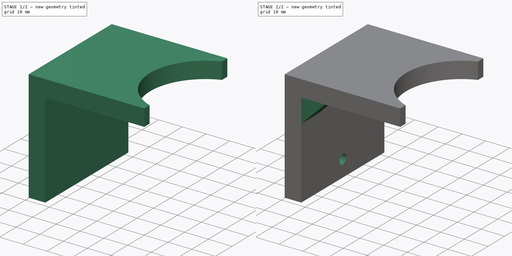
[diagram: build sequence overview — one tinted view per stage of 2, left to right]
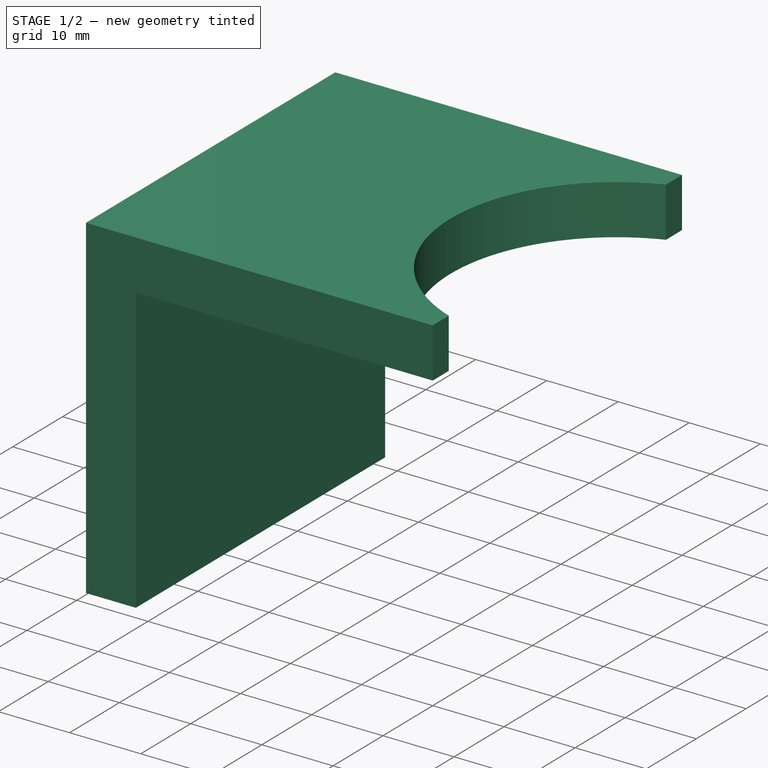
[diagram: stage 1 of 2 — iso view after this stage's code; geometry added in this stage tinted green]
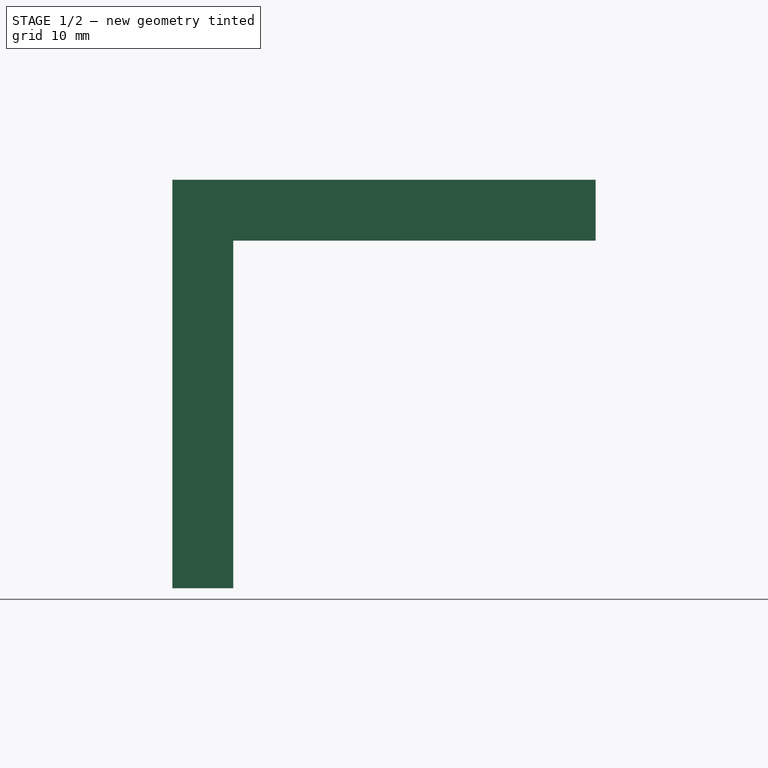
[diagram: stage 1 of 2 — front view after this stage's code; geometry added in this stage tinted green]
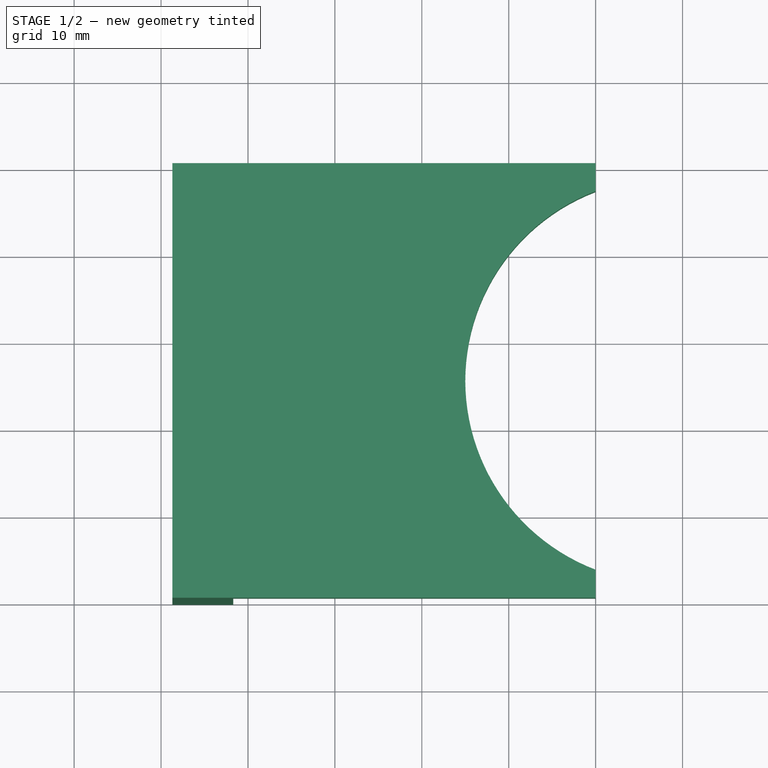
[diagram: stage 1 of 2 — top view after this stage's code; geometry added in this stage tinted green]
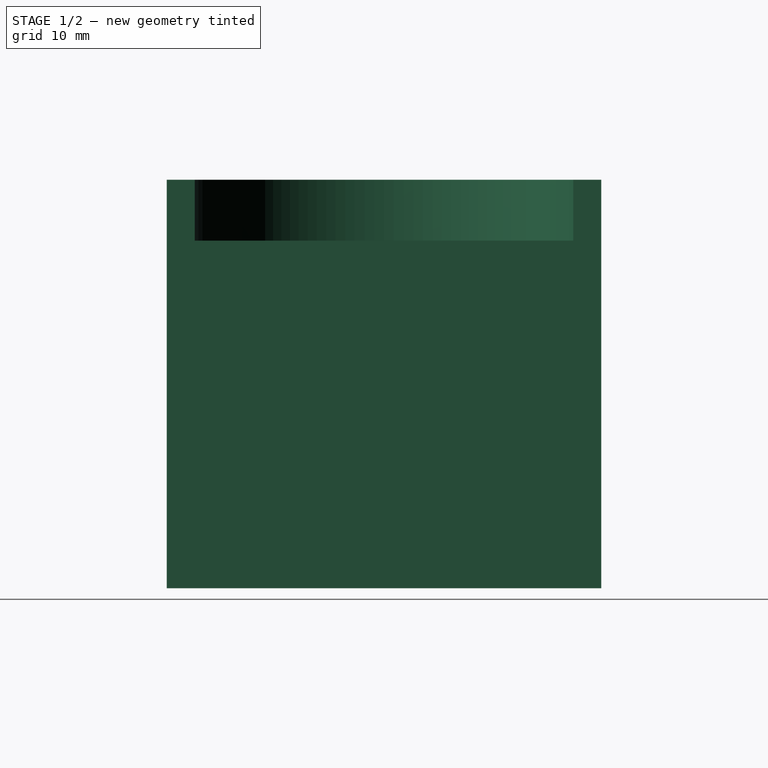
[diagram: stage 1 of 2 — right view after this stage's code; geometry added in this stage tinted green]
FCSTD DOCUMENT  (FreeCAD 0.14R3700 (Git))
Label: equerre_traction_FV-082_rev2
License: CC-BY 3.0
LicenseURL: http://creativecommons.org/licenses/by/3.0/
objects: Sketcher::SketchObject×4, PartDesign::Pad×2, PartDesign::Pocket×2
note: 12 computed .brp shape members not serialized (recipe doc carries the construction recipe); baked Part::Feature solids carry a one-line shape summary decoded from their .brp

FEATURE [Sketcher::SketchObject] Sketch
  Placement = pos=(0,0,0) rot=(1,0,0;1.5708rad)
  sketch-geometry (6):
    g0: LineSegment StartX=-41.7 StartY=-27 StartZ=0 EndX=-48.7 EndY=-27 EndZ=0
    g1: LineSegment StartX=-48.7 StartY=-27 StartZ=0 EndX=-48.7 EndY=20 EndZ=0
    g2: LineSegment StartX=-41.7 StartY=-27 StartZ=0 EndX=-41.7 EndY=13 EndZ=0
    g3: LineSegment StartX=-41.7 StartY=13 StartZ=0 EndX=0 EndY=13 EndZ=0
    g4: LineSegment StartX=0 StartY=13 StartZ=0 EndX=0 EndY=20 EndZ=0
    g5: LineSegment StartX=0 StartY=20 StartZ=0 EndX=-48.7 EndY=20 EndZ=0
  constraints (16):
    c: Horizontal(g0)
    c: Coincident(g1,g0)
    c: Vertical(g1)
    c: Coincident(g2,g0)
    c: Vertical(g2)
    c: Horizontal(g3)
    c: Coincident(g4,g3)
    c: Vertical(g4)
    c: Coincident(g5,g4)
    c: Coincident(g5,g1)
    c: Horizontal(g5)
    c: Distance(g4) = 7
    c: Coincident(g2,g3)
    c: Distance(g0) = 7
    c: Distance(g2) = 40
    c: Distance(g3) = 41.7
FEATURE [PartDesign::Pad] Pad
  Length = 50
  Length2 = 100
  Placement = pos=(0,0,0) rot=(1,0,0;1.5708rad)
  Reversed = true
  Sketch = -> Sketch
  Type = 0
FEATURE [Sketcher::SketchObject] Sketch001
  ExternalGeometry = -> [Pad]
  Placement = pos=(0,0,20) rot=(0,0,1;3.14159rad)
  Support = -> Pad [Face3]
  sketch-geometry (1):
    g0: Circle CenterX=-8.31 CenterY=-25 CenterZ=0 NormalX=0 NormalY=0 NormalZ=1 Radius=23.31
  constraints (3):
    c: Radius(g0) = 23.31
    c: DistanceY(g-1,g0) = -25
    c: DistanceX(g0,g-3) = 50.01
FEATURE [PartDesign::Pocket] Pocket
  Length = 7
  Placement = pos=(0,0,0) rot=(1,0,0;1.5708rad)
  Sketch = -> Sketch001
  Type = 0
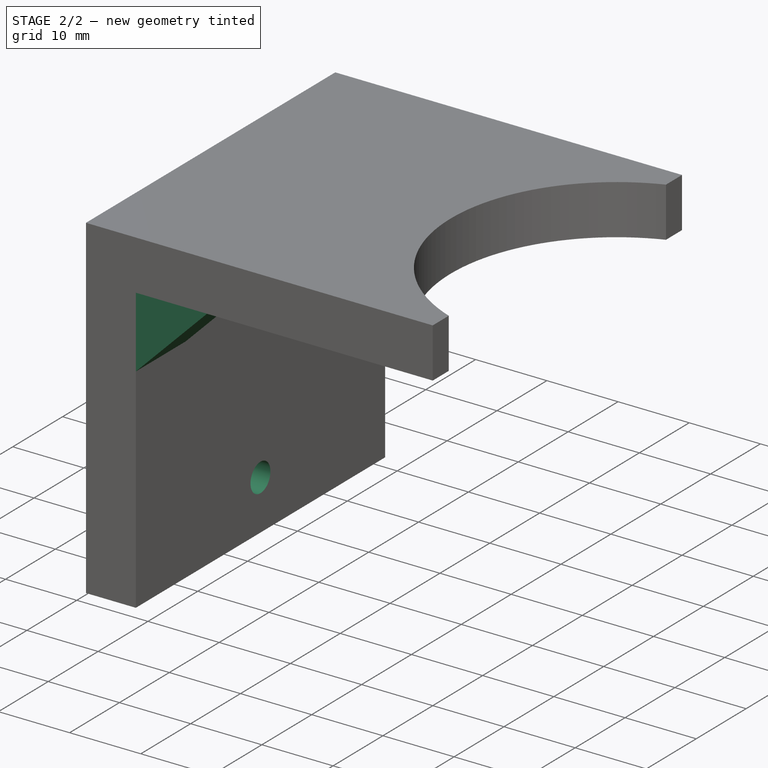
[diagram: stage 2 of 2 — iso view after this stage's code; geometry added in this stage tinted green]
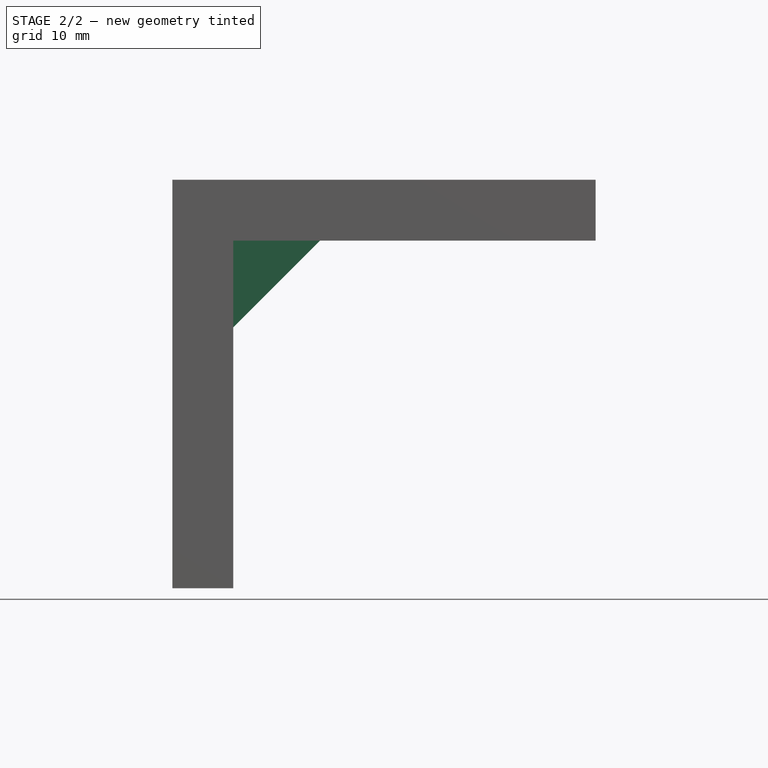
[diagram: stage 2 of 2 — front view after this stage's code; geometry added in this stage tinted green]
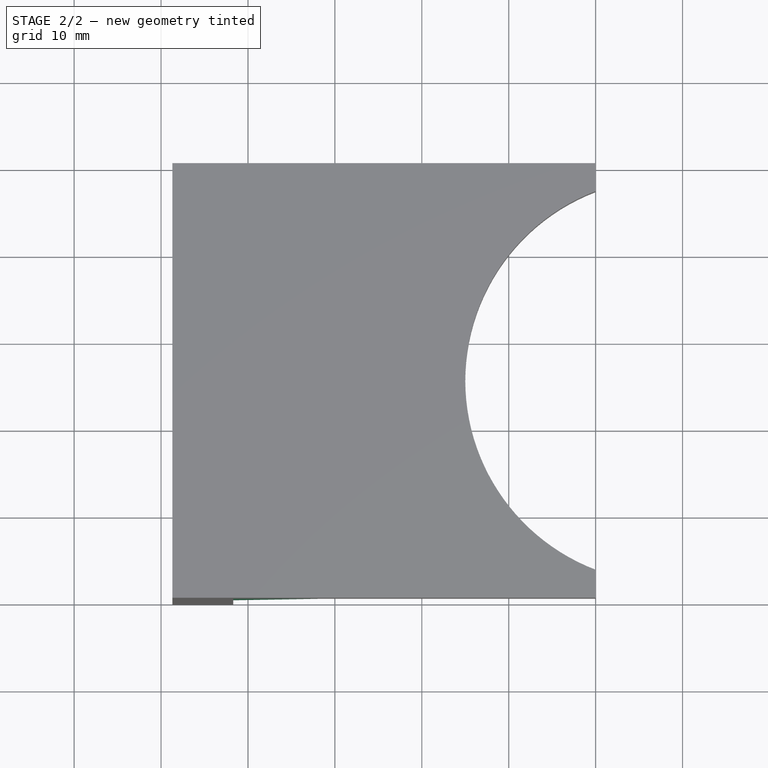
[diagram: stage 2 of 2 — top view after this stage's code; geometry added in this stage tinted green]
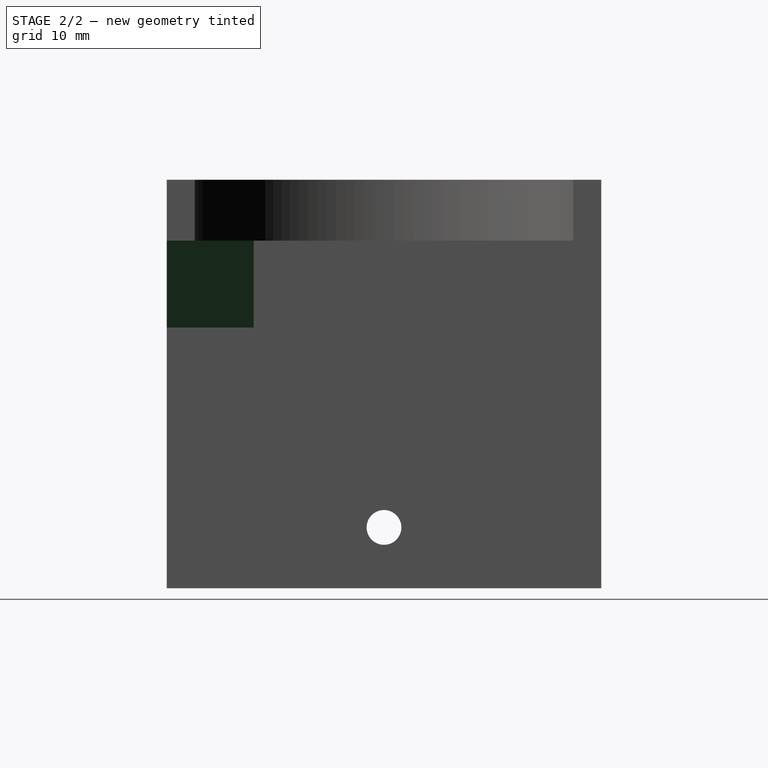
[diagram: stage 2 of 2 — right view after this stage's code; geometry added in this stage tinted green]
FEATURE [Sketcher::SketchObject] Sketch002
  ExternalGeometry = -> [Pocket]
  Placement = pos=(-48.7,0,0) rot=(0.707107,0,-0.707107;3.14159rad)
  Support = -> Pocket [Face3]
  sketch-geometry (1):
    g0: Circle CenterX=20 CenterY=-25 CenterZ=0 NormalX=0 NormalY=0 NormalZ=1 Radius=2
  constraints (3):
    c: Radius(g0) = 2
    c: DistanceX(g0,g-4) = 7
    c: DistanceY(g-4,g0) = 25
FEATURE [PartDesign::Pocket] Pocket001
  Length = 7
  Placement = pos=(0,0,0) rot=(1,0,0;1.5708rad)
  Sketch = -> Sketch002
  Type = 0
FEATURE [Sketcher::SketchObject] Sketch003
  ExternalGeometry = -> [Pocket001]
  Placement = pos=(0,0,0) rot=(1,0,0;1.5708rad)
  Support = -> Pocket001 [Face4]
  sketch-geometry (3):
    g0: LineSegment StartX=-41.7 StartY=13 StartZ=0 EndX=-41.7 EndY=3 EndZ=0
    g1: LineSegment StartX=-41.7 StartY=3 StartZ=0 EndX=-31.7 EndY=13 EndZ=0
    g2: LineSegment StartX=-31.7 StartY=13 StartZ=0 EndX=-41.7 EndY=13 EndZ=0
  constraints (8):
    c: Vertical(g0)
    c: Coincident(g1,g0)
    c: Coincident(g2,g1)
    c: Coincident(g2,g0)
    c: Horizontal(g2)
    c: Distance(g2) = 10
    c: Distance(g0) = 10
    c: Coincident(g0,g-4)
FEATURE [PartDesign::Pad] Pad001
  Length = 10
  Length2 = 100
  Placement = pos=(0,0,0) rot=(1,0,0;1.5708rad)
  Reversed = true
  Sketch = -> Sketch003
  Type = 0
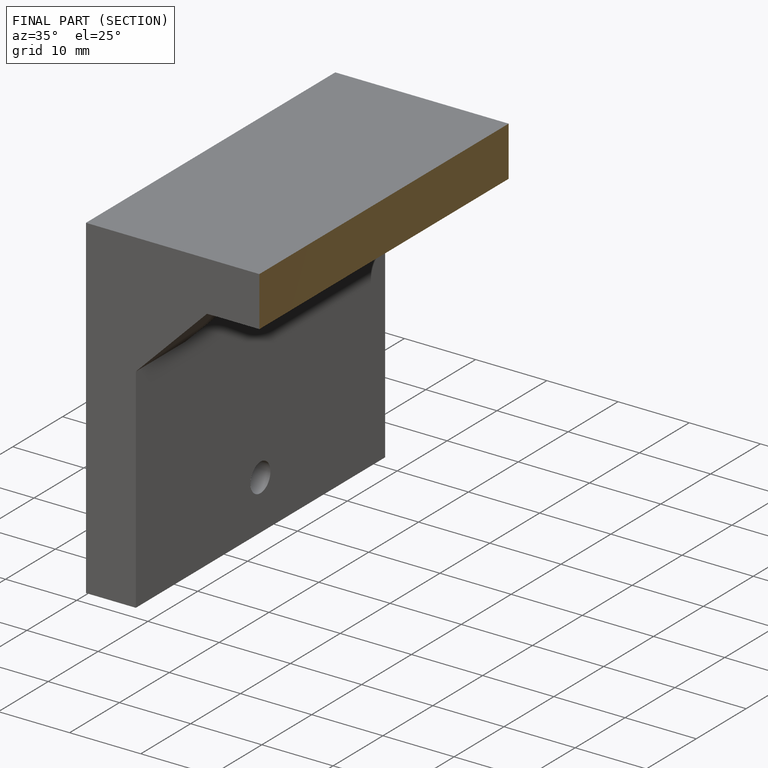
[diagram: finished part — half-section view (interior)]
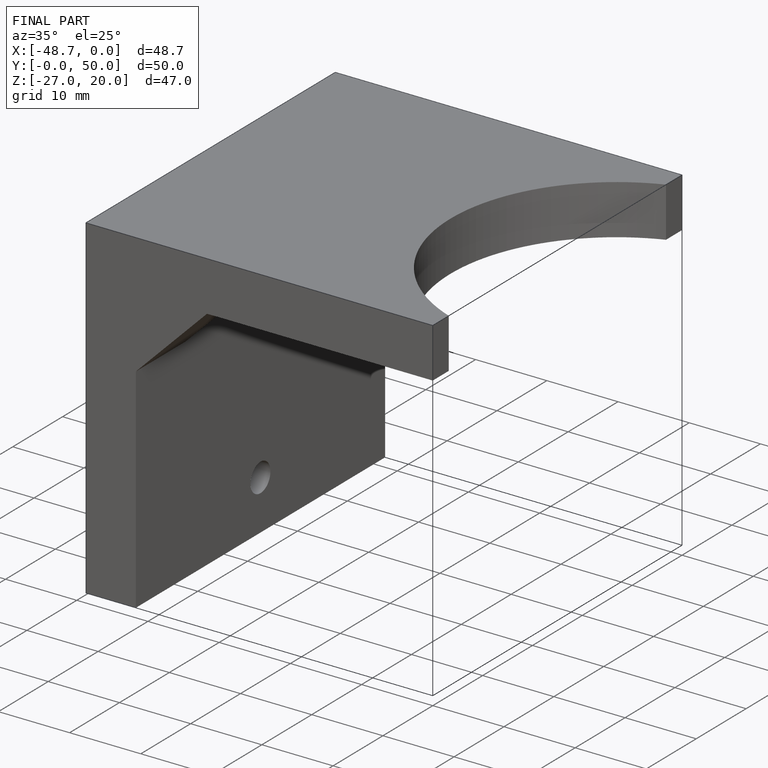
[diagram: finished part — iso view with bounding-box wireframe]
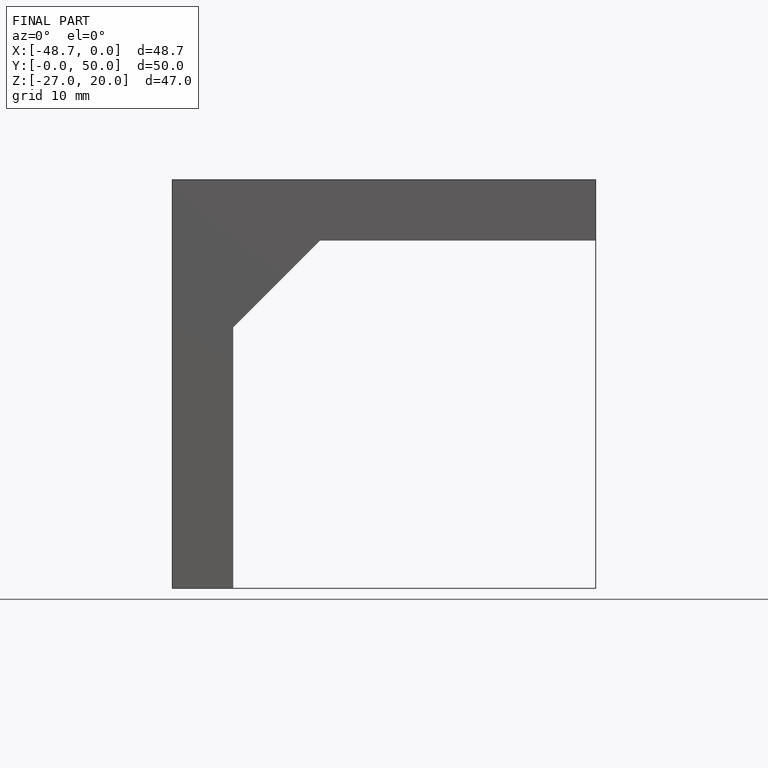
[diagram: finished part — front view with bounding-box wireframe]
